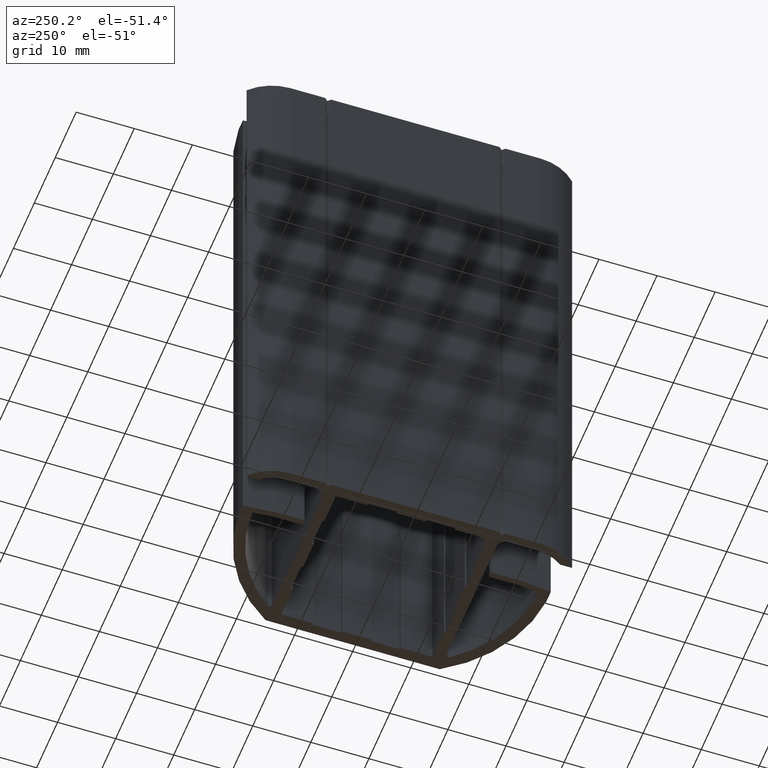
[diagram: clean part render]
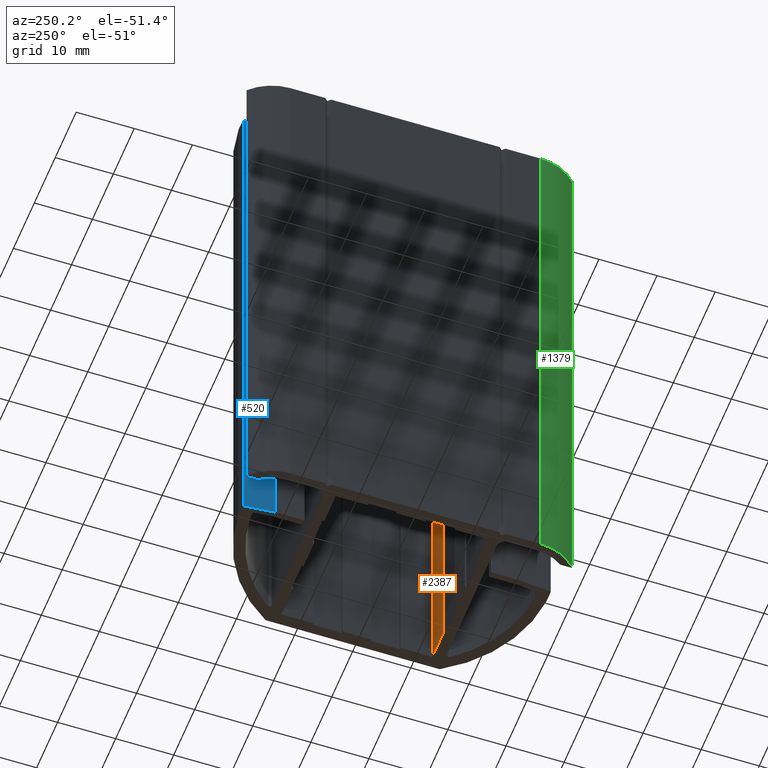
[diagram: same view with three faces highlighted in distinct colors, each labeled with its STEP entity id]
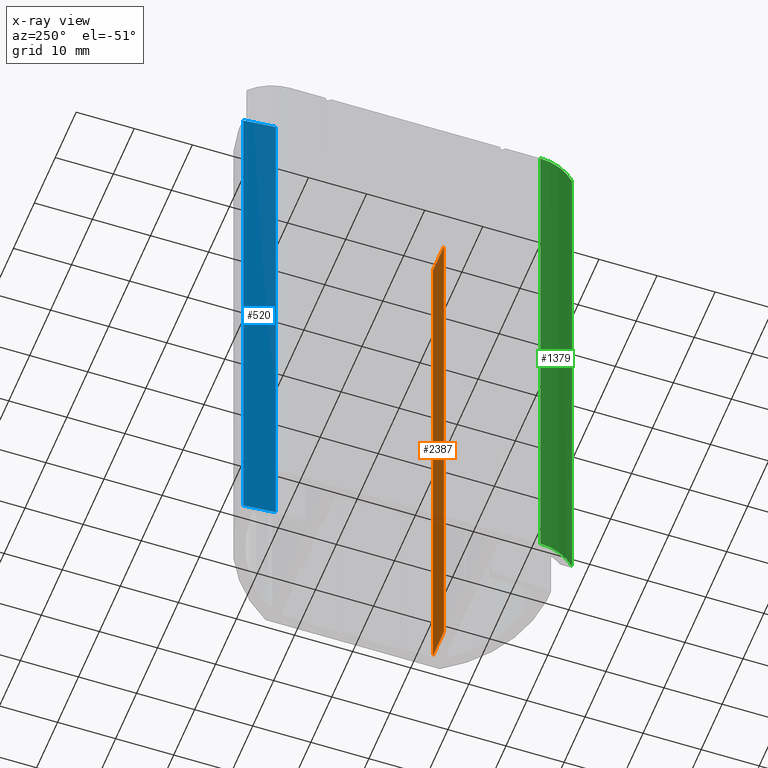
[diagram: x-ray of the same camera — body ghosted, the three highlighted faces saturated]
A machine part, auxiliary view with three faces highlighted in distinct colors.
The next image is the same camera in x-ray (body ghosted, the three faces saturated) — at least one of them is partly hidden behind the body in this view.
Their STEP definitions:

[orange] entity #2387 — the highlighted planar face has unit normal (0, 1, 0).
#2329=CARTESIAN_POINT('',(27.799999999999955,-13.0,-100.0));
#2330=VERTEX_POINT('',#2329);
#2338=CARTESIAN_POINT('',(27.799999999999955,-13.0,0.0));
#2339=VERTEX_POINT('',#2338);
#2340=CARTESIAN_POINT('',(27.799999999999955,-13.0,-100.0));
#2341=DIRECTION('',(0.0,0.0,1.0));
#2342=VECTOR('',#2341,100.0);
#2343=LINE('',#2340,#2342);
#2344=EDGE_CURVE('',#2330,#2339,#2343,.T.);
#2357=CARTESIAN_POINT('',(27.799999999999955,-13.0,-100.0));
#2358=DIRECTION('',(0.0,1.0,0.0));
#2359=DIRECTION('',(-1.0,0.0,0.0));
#2360=AXIS2_PLACEMENT_3D('',#2357,#2358,#2359);
#2361=PLANE('',#2360);
#2362=CARTESIAN_POINT('',(22.500000000000000,-13.0,-100.0));
#2363=VERTEX_POINT('',#2362);
#2364=CARTESIAN_POINT('',(27.799999999999955,-13.0,-100.0));
#2365=DIRECTION('',(-1.0,0.0,0.0));
#2366=VECTOR('',#2365,5.299999999999955);
#2367=LINE('',#2364,#2366);
#2368=EDGE_CURVE('',#2330,#2363,#2367,.T.);
#2369=ORIENTED_EDGE('',*,*,#2368,.T.);
#2370=CARTESIAN_POINT('',(22.500000000000000,-13.0,0.0));
#2371=VERTEX_POINT('',#2370);
#2372=CARTESIAN_POINT('',(22.500000000000000,-13.0,-100.0));
#2373=DIRECTION('',(0.0,0.0,1.0));
#2374=VECTOR('',#2373,100.0);
#2375=LINE('',#2372,#2374);
#2376=EDGE_CURVE('',#2363,#2371,#2375,.T.);
#2377=ORIENTED_EDGE('',*,*,#2376,.T.);
#2378=CARTESIAN_POINT('',(27.799999999999955,-13.0,0.0));
#2379=DIRECTION('',(-1.0,0.0,0.0));
#2380=VECTOR('',#2379,5.299999999999955);
#2381=LINE('',#2378,#2380);
#2382=EDGE_CURVE('',#2339,#2371,#2381,.T.);
#2383=ORIENTED_EDGE('',*,*,#2382,.F.);
#2384=ORIENTED_EDGE('',*,*,#2344,.F.);
#2385=EDGE_LOOP('',(#2369,#2377,#2383,#2384));
#2386=FACE_OUTER_BOUND('',#2385,.T.);
#2387=ADVANCED_FACE('',(#2386),#2361,.T.);

[blue] entity #520 — the highlighted planar face has unit normal (-0.9959, 0.0905, 0).
#462=CARTESIAN_POINT('',(8.891732143146101,26.409053574604314,-100.0));
#463=VERTEX_POINT('',#462);
#471=CARTESIAN_POINT('',(8.891732143146101,26.409053574604314,0.0));
#472=VERTEX_POINT('',#471);
#473=CARTESIAN_POINT('',(8.891732143146101,26.409053574604314,-100.0));
#474=DIRECTION('',(0.0,0.0,1.0));
#475=VECTOR('',#474,100.0);
#476=LINE('',#473,#475);
#477=EDGE_CURVE('',#463,#472,#476,.T.);
#490=CARTESIAN_POINT('',(8.891732143146101,26.409053574604314,-100.0));
#491=DIRECTION('',(-0.995893206467702,0.090535746042540,0.0));
#492=DIRECTION('',(-0.090535746042540,-0.995893206467702,0.0));
#493=AXIS2_PLACEMENT_3D('',#490,#491,#492);
#494=PLANE('',#493);
#495=CARTESIAN_POINT('',(8.400000000000091,20.999999999999517,-100.0));
#496=VERTEX_POINT('',#495);
#497=CARTESIAN_POINT('',(8.891732143146101,26.409053574604314,-100.0));
#498=DIRECTION('',(-0.090535746042540,-0.995893206467702,0.0));
#499=VECTOR('',#498,5.431359044801577);
#500=LINE('',#497,#499);
#501=EDGE_CURVE('',#463,#496,#500,.T.);
#502=ORIENTED_EDGE('',*,*,#501,.T.);
#503=CARTESIAN_POINT('',(8.400000000000091,20.999999999999517,0.0));
#504=VERTEX_POINT('',#503);
#505=CARTESIAN_POINT('',(8.400000000000091,20.999999999999517,-100.0));
#506=DIRECTION('',(0.0,0.0,1.0));
#507=VECTOR('',#506,100.0);
#508=LINE('',#505,#507);
#509=EDGE_CURVE('',#496,#504,#508,.T.);
#510=ORIENTED_EDGE('',*,*,#509,.T.);
#511=CARTESIAN_POINT('',(8.891732143146101,26.409053574604314,0.0));
#512=DIRECTION('',(-0.090535746042540,-0.995893206467702,0.0));
#513=VECTOR('',#512,5.431359044801577);
#514=LINE('',#511,#513);
#515=EDGE_CURVE('',#472,#504,#514,.T.);
#516=ORIENTED_EDGE('',*,*,#515,.F.);
#517=ORIENTED_EDGE('',*,*,#477,.F.);
#518=EDGE_LOOP('',(#502,#510,#516,#517));
#519=FACE_OUTER_BOUND('',#518,.T.);
#520=ADVANCED_FACE('',(#519),#494,.T.);

[green] entity #1379 — the highlighted cylindrical surface (partial cylindrical patch) has radius 9 mm, axis along (0, 0, 1).
#1321=CARTESIAN_POINT('',(0.0,-21.500000000000000,-100.0));
#1322=VERTEX_POINT('',#1321);
#1329=CARTESIAN_POINT('',(0.0,-21.500000000000000,0.0));
#1330=VERTEX_POINT('',#1329);
#1331=CARTESIAN_POINT('',(0.0,-21.500000000000000,-100.0));
#1332=DIRECTION('',(0.0,0.0,1.0));
#1333=VECTOR('',#1332,100.0);
#1334=LINE('',#1331,#1333);
#1335=EDGE_CURVE('',#1322,#1330,#1334,.T.);
#1347=CARTESIAN_POINT('',(9.0,-21.500000000000000,-100.0));
#1348=DIRECTION('',(0.0,0.0,1.0));
#1349=DIRECTION('',(1.0,0.0,0.0));
#1350=AXIS2_PLACEMENT_3D('',#1347,#1348,#1349);
#1351=CYLINDRICAL_SURFACE('',#1350,9.0);
#1352=CARTESIAN_POINT('',(2.745851017320092,-27.971910112359467,-100.0));
#1353=VERTEX_POINT('',#1352);
#1354=CARTESIAN_POINT('',(9.0,-21.500000000000000,-100.0));
#1355=DIRECTION('',(0.0,0.0,1.0));
#1356=DIRECTION('',(1.0,0.0,0.0));
#1357=AXIS2_PLACEMENT_3D('',#1354,#1355,#1356);
#1358=CIRCLE('',#1357,9.0);
#1359=EDGE_CURVE('',#1322,#1353,#1358,.T.);
#1360=ORIENTED_EDGE('',*,*,#1359,.T.);
#1361=CARTESIAN_POINT('',(2.745851017320092,-27.971910112359467,0.0));
#1362=VERTEX_POINT('',#1361);
#1363=CARTESIAN_POINT('',(2.745851017320092,-27.971910112359467,-100.0));
#1364=DIRECTION('',(0.0,0.0,1.0));
#1365=VECTOR('',#1364,100.0);
#1366=LINE('',#1363,#1365);
#1367=EDGE_CURVE('',#1353,#1362,#1366,.T.);
#1368=ORIENTED_EDGE('',*,*,#1367,.T.);
#1369=CARTESIAN_POINT('',(9.0,-21.500000000000000,0.0));
#1370=DIRECTION('',(0.0,0.0,1.0));
#1371=DIRECTION('',(1.0,0.0,0.0));
#1372=AXIS2_PLACEMENT_3D('',#1369,#1370,#1371);
#1373=CIRCLE('',#1372,9.0);
#1374=EDGE_CURVE('',#1330,#1362,#1373,.T.);
#1375=ORIENTED_EDGE('',*,*,#1374,.F.);
#1376=ORIENTED_EDGE('',*,*,#1335,.F.);
#1377=EDGE_LOOP('',(#1360,#1368,#1375,#1376));
#1378=FACE_OUTER_BOUND('',#1377,.T.);
#1379=ADVANCED_FACE('',(#1378),#1351,.T.);